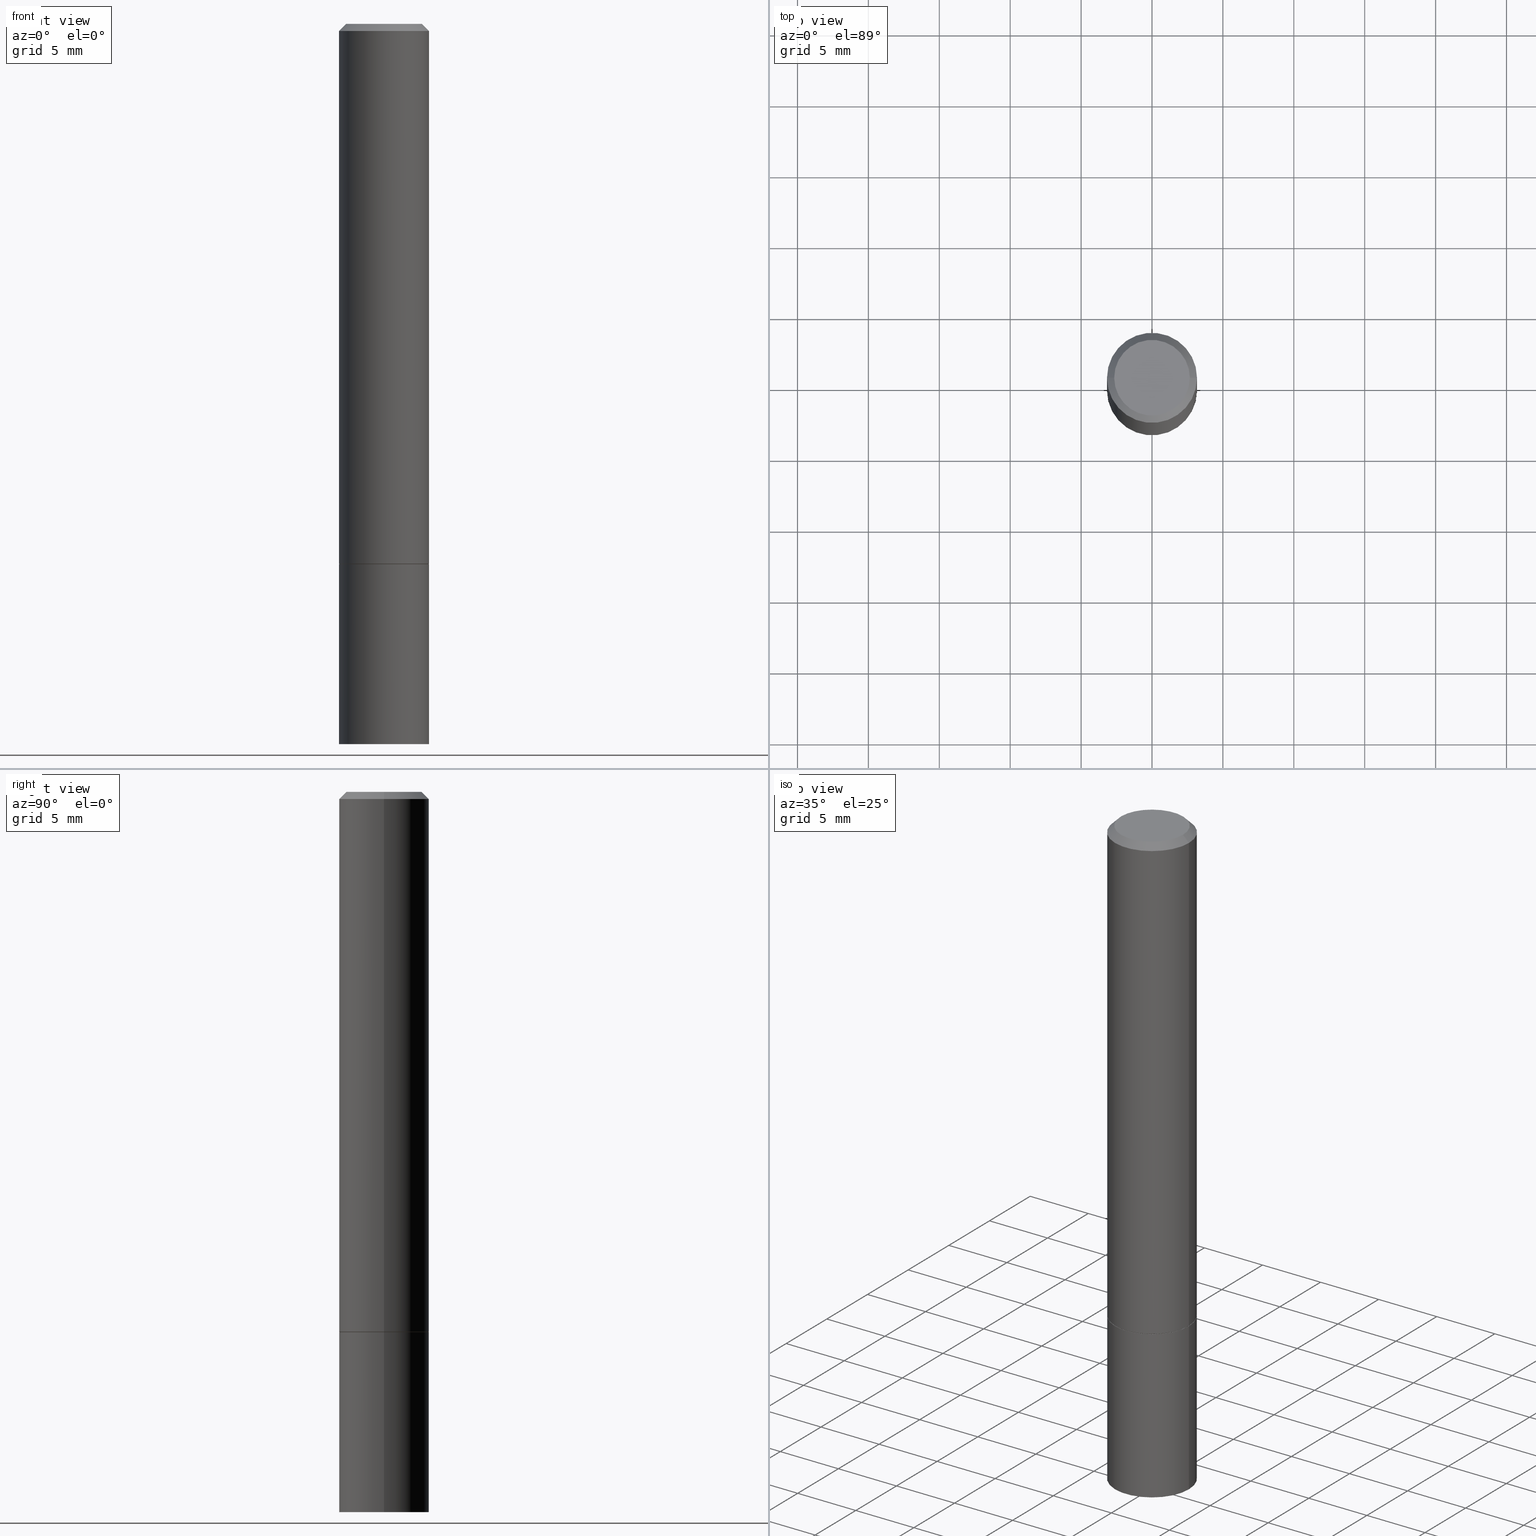
[diagram: canonical four-view strip — front | top / right | iso, engineering-drawing reading convention]
A machine part, canonical four-view strip (front | top / right | iso — engineering-drawing reading convention). The complete STEP part file that produces these views, byte-faithful:
ISO-10303-21;
HEADER;
FILE_DESCRIPTION (( 'STEP AP203' ),
    '1' );
FILE_NAME ('31656.STEP',
    '2024-02-27T13:11:52',
    ( '' ),
    ( '' ),
    'SwSTEP 2.0',
    'SolidWorks 2023',
    '' );
FILE_SCHEMA (( 'CONFIG_CONTROL_DESIGN' ));
ENDSEC;

DATA;
#1 = CC_DESIGN_PERSON_AND_ORGANIZATION_ASSIGNMENT ( #24, #255, ( #36 ) ) ;
#2 = DIRECTION ( 'NONE',  ( -2.445468806185136597E-29, 3.491481338843145583E-15, 1.000000000000000000 ) ) ;
#3 = PRODUCT_DEFINITION_FORMATION_WITH_SPECIFIED_SOURCE ( 'ANY', '', #36, .NOT_KNOWN. ) ;
#4 = EDGE_CURVE ( 'NONE', #354, #94, #82, .T. ) ;
#5 = EDGE_CURVE ( 'NONE', #95, #68, #44, .T. ) ;
#6 = AXIS2_PLACEMENT_3D ( 'NONE', #173, #292, #143 ) ;
#7 = APPROVAL_ROLE ( '' ) ;
#8 = LINE ( 'NONE', #90, #122 ) ;
#9 = CARTESIAN_POINT ( 'NONE',  ( 8.728703347108198236E-16, 0.1249999999999947542, -1.500000000000000444 ) ) ;
#10 = ORIENTED_EDGE ( 'NONE', *, *, #228, .F. ) ;
#11 = CC_DESIGN_PERSON_AND_ORGANIZATION_ASSIGNMENT ( #183, #303, ( #3 ) ) ;
#12 = VERTEX_POINT ( 'NONE', #343 ) ;
#13 =( LENGTH_UNIT ( ) NAMED_UNIT ( * ) SI_UNIT ( $, .METRE. ) );
#14 = AXIS2_PLACEMENT_3D ( 'NONE', #80, #195, #308 ) ;
#15 = AXIS2_PLACEMENT_3D ( 'NONE', #139, #163, #77 ) ;
#16 = ORIENTED_EDGE ( 'NONE', *, *, #89, .T. ) ;
#17 = EDGE_CURVE ( 'NONE', #94, #220, #141, .T. ) ;
#18 = PERSON_AND_ORGANIZATION ( #179, #294 ) ;
#19 = CARTESIAN_POINT ( 'NONE',  ( 3.665757740471518732E-29, -5.233730526925875170E-15, -1.498999999999999666 ) ) ;
#20 = EDGE_LOOP ( 'NONE', ( #327, #10 ) ) ;
#21 = ADVANCED_FACE ( 'NONE', ( #251 ), #349, .T. ) ;
#22 = AXIS2_PLACEMENT_3D ( 'NONE', #358, #226, #335 ) ;
#23 = CARTESIAN_POINT ( 'NONE',  ( 3.668203209277704335E-29, -5.237222008264717388E-15, -1.499999999999999778 ) ) ;
#24 = PERSON_AND_ORGANIZATION ( #179, #294 ) ;
#25 = CALENDAR_DATE ( 2024, 27, 2 ) ;
#26 = LINE ( 'NONE', #192, #350 ) ;
#27 = DIRECTION ( 'NONE',  ( 1.000000000000000000, -6.982962677686270655E-15, 0.000000000000000000 ) ) ;
#28 = ORIENTED_EDGE ( 'NONE', *, *, #17, .F. ) ;
#29 = CIRCLE ( 'NONE', #293, 0.1239999999999999991 ) ;
#30 = CARTESIAN_POINT ( 'NONE',  ( 0.000000000000000000, 0.000000000000000000, 0.000000000000000000 ) ) ;
#31 = CARTESIAN_POINT ( 'NONE',  ( 4.890937612370273194E-29, -6.982962677686291165E-15, -2.000000000000000000 ) ) ;
#32 = CARTESIAN_POINT ( 'NONE',  ( 7.332110811570569396E-16, 0.1049999999999998573, -3.666055405785298010E-16 ) ) ;
#33 = ADVANCED_BREP_SHAPE_REPRESENTATION ( '31656', ( #295, #47, #6 ), #332 ) ;
#34 = LINE ( 'NONE', #205, #61 ) ;
#35 = CC_DESIGN_PERSON_AND_ORGANIZATION_ASSIGNMENT ( #159, #278, ( #197 ) ) ;
#36 = PRODUCT ( '31656', '31656', '', ( #359 ) ) ;
#37 = APPROVAL_PERSON_ORGANIZATION ( #178, #282, #138 ) ;
#38 = ORIENTED_EDGE ( 'NONE', *, *, #194, .F. ) ;
#39 = APPLICATION_CONTEXT ( 'configuration controlled 3d designs of mechanical parts and assemblies' ) ;
#40 = DIRECTION ( 'NONE',  ( 2.438088387897960049E-29, -3.491481338843145188E-15, -1.000000000000000000 ) ) ;
#41 = ORIENTED_EDGE ( 'NONE', *, *, #123, .T. ) ;
#42 = FACE_OUTER_BOUND ( 'NONE', #304, .T. ) ;
#43 = EDGE_LOOP ( 'NONE', ( #326, #130, #300, #191 ) ) ;
#44 = CIRCLE ( 'NONE', #276, 0.1049999999999998573 ) ;
#45 = SECURITY_CLASSIFICATION_LEVEL ( 'unclassified' ) ;
#46 = CIRCLE ( 'NONE', #15, 0.1250000000000000000 ) ;
#47 = MANIFOLD_SOLID_BREP ( 'Body-Move/Copy2[2]', #214 ) ;
#48 = ORIENTED_EDGE ( 'NONE', *, *, #264, .T. ) ;
#49 = CYLINDRICAL_SURFACE ( 'NONE', #22, 0.1249999999999999167 ) ;
#50 = ADVANCED_FACE ( 'NONE', ( #306 ), #232, .T. ) ;
#51 = CARTESIAN_POINT ( 'NONE',  ( 3.668203209277704895E-29, -5.237222008264718177E-15, -1.500000000000000222 ) ) ;
#52 = CARTESIAN_POINT ( 'NONE',  ( -0.1250000000000000000, 8.881784197001252323E-16, -6.148668862818632227E-30 ) ) ;
#53 = CC_DESIGN_APPROVAL ( #66, ( #197 ) ) ;
#54 = CARTESIAN_POINT ( 'NONE',  ( 3.668203209277704335E-29, -5.237222008264717388E-15, -1.499999999999999778 ) ) ;
#55 = DIRECTION ( 'NONE',  ( 1.000000000000000000, -6.982962677686270655E-15, 0.000000000000000000 ) ) ;
#56 = LENGTH_MEASURE_WITH_UNIT ( LENGTH_MEASURE( 0.02539999999999999897 ), #13 );
#57 = CARTESIAN_POINT ( 'NONE',  ( 0.1250000000000000000, -6.106600861636658508E-15, -1.498999999999999666 ) ) ;
#58 = CC_DESIGN_SECURITY_CLASSIFICATION ( #197, ( #3 ) ) ;
#59 = DIRECTION ( 'NONE',  ( -2.445468806185136877E-29, 3.491481338843145188E-15, 1.000000000000000000 ) ) ;
#60 = APPROVAL_DATE_TIME ( #262, #66 ) ;
#61 = VECTOR ( 'NONE', #119, 39.37007874015748143 ) ;
#62 = LOCAL_TIME ( 8, 11, 52.00000000000000000, #285 ) ;
#63 = LINE ( 'NONE', #172, #240 ) ;
#64 = CARTESIAN_POINT ( 'NONE',  ( 0.1239999999999999991, -6.103109380297816290E-15, -1.500000000000000222 ) ) ;
#65 = PERSON_AND_ORGANIZATION_ROLE ( 'creator' ) ;
#66 = APPROVAL ( #250, 'UNSPECIFIED' ) ;
#67 = EDGE_LOOP ( 'NONE', ( #156, #272 ) ) ;
#68 = VERTEX_POINT ( 'NONE', #283 ) ;
#69 = EDGE_LOOP ( 'NONE', ( #279, #324, #201, #75 ) ) ;
#70 = CC_DESIGN_PERSON_AND_ORGANIZATION_ASSIGNMENT ( #76, #81, ( #174 ) ) ;
#71 = ORIENTED_EDGE ( 'NONE', *, *, #182, .T. ) ;
#72 = DIMENSIONAL_EXPONENTS ( 1.000000000000000000, 0.000000000000000000, 0.000000000000000000, 0.000000000000000000, 0.000000000000000000, 0.000000000000000000, 0.000000000000000000 ) ;
#73 = CARTESIAN_POINT ( 'NONE',  ( 0.000000000000000000, 0.000000000000000000, 0.000000000000000000 ) ) ;
#74 = ADVANCED_FACE ( 'NONE', ( #140 ), #49, .T. ) ;
#75 = ORIENTED_EDGE ( 'NONE', *, *, #264, .F. ) ;
#76 = PERSON_AND_ORGANIZATION ( #179, #294 ) ;
#77 = DIRECTION ( 'NONE',  ( 1.000000000000000000, -6.982962677686270655E-15, 0.000000000000000000 ) ) ;
#78 = DIRECTION ( 'NONE',  ( 1.000000000000000000, -6.982962677686266711E-15, 0.000000000000000000 ) ) ;
#79 = FACE_OUTER_BOUND ( 'NONE', #155, .T. ) ;
#80 = CARTESIAN_POINT ( 'NONE',  ( 3.668203209277704335E-29, -5.237222008264717388E-15, -1.499999999999999778 ) ) ;
#81 = PERSON_AND_ORGANIZATION_ROLE ( 'creator' ) ;
#82 = CIRCLE ( 'NONE', #316, 0.1250000000000000000 ) ;
#83 = LINE ( 'NONE', #198, #166 ) ;
#84 = CARTESIAN_POINT ( 'NONE',  ( 4.890937612370279289E-31, -6.982962677686299005E-17, -0.02000000000000002470 ) ) ;
#85 = ORIENTED_EDGE ( 'NONE', *, *, #113, .F. ) ;
#86 =( CONVERSION_BASED_UNIT ( 'INCH', #56 ) LENGTH_UNIT ( ) NAMED_UNIT ( #72 ) );
#87 = LINE ( 'NONE', #52, #202 ) ;
#88 = DIRECTION ( 'NONE',  ( 1.000000000000000000, -6.982962677686266711E-15, 4.876176775795935793E-29 ) ) ;
#89 = EDGE_CURVE ( 'NONE', #68, #95, #102, .T. ) ;
#90 = CARTESIAN_POINT ( 'NONE',  ( -0.1239999999999999991, -4.356149015922194741E-15, -1.500000000000000222 ) ) ;
#91 = DIRECTION ( 'NONE',  ( 1.000000000000000000, -6.982962677686270655E-15, 0.000000000000000000 ) ) ;
#92 = CIRCLE ( 'NONE', #270, 0.1249999999999998335 ) ;
#93 = CIRCLE ( 'NONE', #291, 0.1250000000000000000 ) ;
#94 = VERTEX_POINT ( 'NONE', #57 ) ;
#95 = VERTEX_POINT ( 'NONE', #170 ) ;
#96 = AXIS2_PLACEMENT_3D ( 'NONE', #100, #331, #88 ) ;
#97 = ORIENTED_EDGE ( 'NONE', *, *, #225, .T. ) ;
#98 = ORIENTED_EDGE ( 'NONE', *, *, #329, .F. ) ;
#99 = CALENDAR_DATE ( 2024, 27, 2 ) ;
#100 = CARTESIAN_POINT ( 'NONE',  ( 0.000000000000000000, 0.000000000000000000, 0.000000000000000000 ) ) ;
#101 = EDGE_LOOP ( 'NONE', ( #131, #241, #48, #247 ) ) ;
#102 = CIRCLE ( 'NONE', #188, 0.1049999999999998573 ) ;
#103 = DIRECTION ( 'NONE',  ( 1.000000000000000000, -6.982962677686270655E-15, 0.000000000000000000 ) ) ;
#104 = CALENDAR_DATE ( 2024, 27, 2 ) ;
#105 = DIRECTION ( 'NONE',  ( -2.445468806185136597E-29, 3.491481338843145583E-15, 1.000000000000000000 ) ) ;
#106 = CARTESIAN_POINT ( 'NONE',  ( 3.668203209277704895E-29, -5.237222008264718177E-15, -1.500000000000000222 ) ) ;
#107 = DIRECTION ( 'NONE',  ( 2.438088387897960049E-29, -3.491481338843145188E-15, -1.000000000000000000 ) ) ;
#108 = DIRECTION ( 'NONE',  ( 1.000000000000000000, -6.982962677686270655E-15, 0.000000000000000000 ) ) ;
#109 = VECTOR ( 'NONE', #258, 39.37007874015748143 ) ;
#110 = DIRECTION ( 'NONE',  ( -2.445468806185136597E-29, 3.491481338843145583E-15, 1.000000000000000000 ) ) ;
#111 =( NAMED_UNIT ( * ) SI_UNIT ( $, .STERADIAN. ) SOLID_ANGLE_UNIT ( ) );
#112 = DIRECTION ( 'NONE',  ( -2.445468806185136597E-29, 3.491481338843145583E-15, 1.000000000000000000 ) ) ;
#113 = EDGE_CURVE ( 'NONE', #220, #12, #346, .T. ) ;
#114 = DIRECTION ( 'NONE',  ( 1.000000000000000000, -6.982962677686270655E-15, 0.000000000000000000 ) ) ;
#115 = APPROVAL_PERSON_ORGANIZATION ( #305, #210, #7 ) ;
#116 = PRODUCT_DEFINITION_SHAPE ( 'NONE', 'NONE',  #174 ) ;
#117 = CC_DESIGN_PERSON_AND_ORGANIZATION_ASSIGNMENT ( #323, #65, ( #3 ) ) ;
#118 = CARTESIAN_POINT ( 'NONE',  ( 8.728703347108321496E-16, 0.1249999999999930195, -2.000000000000000444 ) ) ;
#119 = DIRECTION ( 'NONE',  ( 0.7071067811865466846, -7.319954787623252890E-15, -0.7071067811865483499 ) ) ;
#120 = DIRECTION ( 'NONE',  ( -1.000000000000000000, 6.982962677686265922E-15, -4.876176775795935793E-29 ) ) ;
#121 = ADVANCED_FACE ( 'NONE', ( #364 ), #339, .F. ) ;
#122 = VECTOR ( 'NONE', #206, 39.37007874015748143 ) ;
#123 = EDGE_CURVE ( 'NONE', #248, #127, #87, .T. ) ;
#124 = COORDINATED_UNIVERSAL_TIME_OFFSET ( 5, 0, .BEHIND. ) ;
#125 = EDGE_CURVE ( 'NONE', #353, #127, #348, .T. ) ;
#126 = PLANE ( 'NONE',  #181 ) ;
#127 = VERTEX_POINT ( 'NONE', #231 ) ;
#128 = ORIENTED_EDGE ( 'NONE', *, *, #228, .T. ) ;
#129 = LOCAL_TIME ( 8, 11, 52.00000000000000000, #338 ) ;
#130 = ORIENTED_EDGE ( 'NONE', *, *, #329, .T. ) ;
#131 = ORIENTED_EDGE ( 'NONE', *, *, #180, .F. ) ;
#132 = APPROVAL_DATE_TIME ( #271, #282 ) ;
#133 = CYLINDRICAL_SURFACE ( 'NONE', #266, 0.1250000000000000000 ) ;
#134 = EDGE_LOOP ( 'NONE', ( #160, #212 ) ) ;
#135 = DIRECTION ( 'NONE',  ( -2.445468806185136597E-29, 3.491481338843145583E-15, 1.000000000000000000 ) ) ;
#136 = AXIS2_PLACEMENT_3D ( 'NONE', #118, #151, #120 ) ;
#137 = DIRECTION ( 'NONE',  ( -2.445468806185136597E-29, 3.491481338843145583E-15, 1.000000000000000000 ) ) ;
#138 = APPROVAL_ROLE ( '' ) ;
#139 = CARTESIAN_POINT ( 'NONE',  ( 4.890937612370273194E-29, -6.982962677686291165E-15, -2.000000000000000000 ) ) ;
#140 = FACE_OUTER_BOUND ( 'NONE', #274, .T. ) ;
#141 = LINE ( 'NONE', #142, #109 ) ;
#142 = CARTESIAN_POINT ( 'NONE',  ( 0.1249999999999999167, -8.728703347107827472E-16, 6.095220969744915537E-30 ) ) ;
#143 = DIRECTION ( 'NONE',  ( 1.000000000000000000, 0.000000000000000000, 0.000000000000000000 ) ) ;
#144 = DESIGN_CONTEXT ( 'detailed design', #39, 'design' ) ;
#145 = DIRECTION ( 'NONE',  ( 2.445468806185136597E-29, -3.491481338843145583E-15, -1.000000000000000000 ) ) ;
#146 = ADVANCED_FACE ( 'NONE', ( #313 ), #196, .T. ) ;
#147 = CARTESIAN_POINT ( 'NONE',  ( 4.890937612370279289E-31, -6.982962677686299005E-17, -0.02000000000000002470 ) ) ;
#148 = DATE_TIME_ROLE ( 'creation_date' ) ;
#149 = AXIS2_PLACEMENT_3D ( 'NONE', #54, #261, #344 ) ;
#150 = AXIS2_PLACEMENT_3D ( 'NONE', #185, #135, #213 ) ;
#151 = DIRECTION ( 'NONE',  ( 2.438088387897960049E-29, -3.491481338843145188E-15, -1.000000000000000000 ) ) ;
#152 = EDGE_CURVE ( 'NONE', #223, #333, #29, .T. ) ;
#153 = ORIENTED_EDGE ( 'NONE', *, *, #310, .T. ) ;
#154 = CARTESIAN_POINT ( 'NONE',  ( -0.1250000000000000000, -1.763601657151241635E-15, -1.498999999999999666 ) ) ;
#155 = EDGE_LOOP ( 'NONE', ( #71, #41, #162, #356 ) ) ;
#156 = ORIENTED_EDGE ( 'NONE', *, *, #269, .F. ) ;
#157 = AXIS2_PLACEMENT_3D ( 'NONE', #31, #317, #91 ) ;
#158 = CC_DESIGN_APPROVAL ( #282, ( #174 ) ) ;
#159 = PERSON_AND_ORGANIZATION ( #179, #294 ) ;
#160 = ORIENTED_EDGE ( 'NONE', *, *, #125, .T. ) ;
#161 = EDGE_CURVE ( 'NONE', #127, #353, #340, .T. ) ;
#162 = ORIENTED_EDGE ( 'NONE', *, *, #125, .F. ) ;
#163 = DIRECTION ( 'NONE',  ( -2.445468806185136597E-29, 3.491481338843145583E-15, 1.000000000000000000 ) ) ;
#164 = DIRECTION ( 'NONE',  ( -2.445468806185136877E-29, 3.491481338843145188E-15, 1.000000000000000000 ) ) ;
#165 = AXIS2_PLACEMENT_3D ( 'NONE', #365, #193, #103 ) ;
#166 = VECTOR ( 'NONE', #312, 39.37007874015748143 ) ;
#167 = CARTESIAN_POINT ( 'NONE',  ( 3.668203209277704895E-29, -5.237222008264718177E-15, -1.500000000000000222 ) ) ;
#168 = FACE_OUTER_BOUND ( 'NONE', #20, .T. ) ;
#169 = DIRECTION ( 'NONE',  ( 1.000000000000000000, -6.982962677686265922E-15, 4.876176775795935232E-29 ) ) ;
#170 = CARTESIAN_POINT ( 'NONE',  ( -0.1049999999999998573, 7.681258945454880957E-16, -5.249639473182158869E-30 ) ) ;
#171 = CIRCLE ( 'NONE', #245, 0.1239999999999999991 ) ;
#172 = CARTESIAN_POINT ( 'NONE',  ( -0.1249999999999999167, 8.881784197001246407E-16, -6.148668862818628023E-30 ) ) ;
#173 = CARTESIAN_POINT ( 'NONE',  ( 0.000000000000000000, 0.000000000000000000, 0.000000000000000000 ) ) ;
#174 = PRODUCT_DEFINITION ( 'UNKNOWN', '', #3, #144 ) ;
#175 = DIRECTION ( 'NONE',  ( 1.000000000000000000, -6.982962677686270655E-15, 0.000000000000000000 ) ) ;
#176 = SHAPE_DEFINITION_REPRESENTATION ( #116, #33 ) ;
#177 = CARTESIAN_POINT ( 'NONE',  ( 4.890937612370279289E-31, -6.982962677686299005E-17, -0.02000000000000002470 ) ) ;
#178 = PERSON_AND_ORGANIZATION ( #179, #294 ) ;
#179 = PERSON ( 'UNSPECIFIED', 'UNSPECIFIED', 'UNSPECIFIED', ('UNSPECIFIED'), ('UNSPECIFIED'), ('UNSPECIFIED') ) ;
#180 = EDGE_CURVE ( 'NONE', #68, #220, #34, .T. ) ;
#181 = AXIS2_PLACEMENT_3D ( 'NONE', #9, #40, #218 ) ;
#182 = EDGE_CURVE ( 'NONE', #281, #248, #320, .T. ) ;
#183 = PERSON_AND_ORGANIZATION ( #179, #294 ) ;
#184 = ORIENTED_EDGE ( 'NONE', *, *, #161, .F. ) ;
#185 = CARTESIAN_POINT ( 'NONE',  ( 0.000000000000000000, 0.000000000000000000, 0.000000000000000000 ) ) ;
#186 = CARTESIAN_POINT ( 'NONE',  ( 0.1249999999999998335, -9.273918764983031658E-16, -0.02000000000000002470 ) ) ;
#187 = ORIENTED_EDGE ( 'NONE', *, *, #5, .T. ) ;
#188 = AXIS2_PLACEMENT_3D ( 'NONE', #200, #236, #169 ) ;
#189 = LOCAL_TIME ( 8, 11, 52.00000000000000000, #355 ) ;
#190 = LINE ( 'NONE', #318, #208 ) ;
#191 = ORIENTED_EDGE ( 'NONE', *, *, #310, .F. ) ;
#192 = CARTESIAN_POINT ( 'NONE',  ( 0.1250000000000000000, -8.728703347107833388E-16, 6.095220969744919741E-30 ) ) ;
#193 = DIRECTION ( 'NONE',  ( -2.445468806185136597E-29, 3.491481338843145583E-15, 1.000000000000000000 ) ) ;
#194 = EDGE_CURVE ( 'NONE', #354, #12, #63, .T. ) ;
#195 = DIRECTION ( 'NONE',  ( -2.445468806185136597E-29, 3.491481338843145583E-15, 1.000000000000000000 ) ) ;
#196 = CONICAL_SURFACE ( 'NONE', #238, 0.1249999999999998335, 0.7853981633974471688 ) ;
#197 = SECURITY_CLASSIFICATION ( '', '', #45 ) ;
#198 = CARTESIAN_POINT ( 'NONE',  ( 0.1239999999999999991, -6.103109380297816290E-15, -1.500000000000000222 ) ) ;
#199 = ORIENTED_EDGE ( 'NONE', *, *, #123, .F. ) ;
#200 = CARTESIAN_POINT ( 'NONE',  ( 0.000000000000000000, 0.000000000000000000, 0.000000000000000000 ) ) ;
#201 = ORIENTED_EDGE ( 'NONE', *, *, #113, .T. ) ;
#202 = VECTOR ( 'NONE', #164, 39.37007874015748143 ) ;
#203 = DIRECTION ( 'NONE',  ( -0.7071067811865466846, 2.468850131082247989E-15, -0.7071067811865483499 ) ) ;
#204 = CALENDAR_DATE ( 2024, 27, 2 ) ;
#205 = CARTESIAN_POINT ( 'NONE',  ( 0.1249999999999998335, -9.273918764983031658E-16, -0.02000000000000002470 ) ) ;
#206 = DIRECTION ( 'NONE',  ( -0.7071067811864267805, 7.493145998869918709E-15, 0.7071067811866682540 ) ) ;
#207 = EDGE_CURVE ( 'NONE', #12, #220, #92, .T. ) ;
#208 = VECTOR ( 'NONE', #203, 39.37007874015748143 ) ;
#209 = ADVANCED_FACE ( 'NONE', ( #268 ), #233, .T. ) ;
#210 = APPROVAL ( #360, 'UNSPECIFIED' ) ;
#211 = APPROVAL_DATE_TIME ( #280, #210 ) ;
#212 = ORIENTED_EDGE ( 'NONE', *, *, #161, .T. ) ;
#213 = DIRECTION ( 'NONE',  ( 1.000000000000000000, -6.982962677686266711E-15, 4.876176775795935793E-29 ) ) ;
#214 = CLOSED_SHELL ( 'NONE', ( #50, #345, #146, #209, #74, #21, #121, #296 ) ) ;
#215 = CC_DESIGN_DATE_AND_TIME_ASSIGNMENT ( #221, #328, ( #197 ) ) ;
#216 = ORIENTED_EDGE ( 'NONE', *, *, #17, .T. ) ;
#217 = CC_DESIGN_APPROVAL ( #210, ( #3 ) ) ;
#218 = DIRECTION ( 'NONE',  ( -1.000000000000000000, 6.982962677686265922E-15, -4.876176775795935793E-29 ) ) ;
#219 = ADVANCED_FACE ( 'NONE', ( #273 ), #126, .F. ) ;
#220 = VERTEX_POINT ( 'NONE', #186 ) ;
#221 = DATE_AND_TIME ( #99, #189 ) ;
#222 = DIRECTION ( 'NONE',  ( -2.445468806185136597E-29, 3.491481338843145583E-15, 1.000000000000000000 ) ) ;
#223 = VERTEX_POINT ( 'NONE', #301 ) ;
#224 = LOCAL_TIME ( 8, 11, 52.00000000000000000, #124 ) ;
#225 = EDGE_CURVE ( 'NONE', #94, #354, #93, .T. ) ;
#226 = DIRECTION ( 'NONE',  ( -2.445468806185136597E-29, 3.491481338843145583E-15, 1.000000000000000000 ) ) ;
#227 = DIRECTION ( 'NONE',  ( -2.445468806185136597E-29, 3.491481338843145583E-15, 1.000000000000000000 ) ) ;
#228 = EDGE_CURVE ( 'NONE', #248, #281, #46, .T. ) ;
#229 = APPROVAL_STATUS ( 'not_yet_approved' ) ;
#230 = PLANE ( 'NONE',  #253 ) ;
#231 = CARTESIAN_POINT ( 'NONE',  ( -0.1250000000000000000, -5.221913923275378650E-15, -1.499999999999999778 ) ) ;
#232 = CONICAL_SURFACE ( 'NONE', #252, 0.1239999999999999991, 0.7853981633972775267 ) ;
#233 = CONICAL_SURFACE ( 'NONE', #342, 0.1249999999999998335, 0.7853981633974471688 ) ;
#234 = EDGE_LOOP ( 'NONE', ( #187, #16 ) ) ;
#235 = ADVANCED_FACE ( 'NONE', ( #79 ), #265, .T. ) ;
#236 = DIRECTION ( 'NONE',  ( -2.445468806185136597E-29, 3.491481338843145583E-15, 1.000000000000000000 ) ) ;
#237 = CARTESIAN_POINT ( 'NONE',  ( -0.1250000000000000000, -5.221913923275378650E-15, -2.000000000000000000 ) ) ;
#238 = AXIS2_PLACEMENT_3D ( 'NONE', #84, #254, #362 ) ;
#239 = COORDINATED_UNIVERSAL_TIME_OFFSET ( 5, 0, .BEHIND. ) ;
#240 = VECTOR ( 'NONE', #59, 39.37007874015748143 ) ;
#241 = ORIENTED_EDGE ( 'NONE', *, *, #5, .F. ) ;
#242 = PRODUCT_RELATED_PRODUCT_CATEGORY ( 'detail', '', ( #36 ) ) ;
#243 = ORIENTED_EDGE ( 'NONE', *, *, #194, .T. ) ;
#244 = ADVANCED_FACE ( 'NONE', ( #361 ), #133, .T. ) ;
#245 = AXIS2_PLACEMENT_3D ( 'NONE', #51, #105, #114 ) ;
#246 = UNCERTAINTY_MEASURE_WITH_UNIT (LENGTH_MEASURE( 1.000000000000000082E-05 ), #86, 'distance_accuracy_value', 'NONE');
#247 = ORIENTED_EDGE ( 'NONE', *, *, #207, .T. ) ;
#248 = VERTEX_POINT ( 'NONE', #237 ) ;
#249 = EDGE_CURVE ( 'NONE', #281, #353, #26, .T. ) ;
#250 = APPROVAL_STATUS ( 'not_yet_approved' ) ;
#251 = FACE_OUTER_BOUND ( 'NONE', #298, .T. ) ;
#252 = AXIS2_PLACEMENT_3D ( 'NONE', #167, #314, #27 ) ;
#253 = AXIS2_PLACEMENT_3D ( 'NONE', #32, #107, #263 ) ;
#254 = DIRECTION ( 'NONE',  ( 2.445468806185136597E-29, -3.491481338843145583E-15, -1.000000000000000000 ) ) ;
#255 = PERSON_AND_ORGANIZATION_ROLE ( 'design_owner' ) ;
#256 = FACE_OUTER_BOUND ( 'NONE', #234, .T. ) ;
#257 = DIRECTION ( 'NONE',  ( -2.445468806185136597E-29, 3.491481338843145583E-15, 1.000000000000000000 ) ) ;
#258 = DIRECTION ( 'NONE',  ( -2.445468806185136877E-29, 3.491481338843145188E-15, 1.000000000000000000 ) ) ;
#259 = AXIS2_PLACEMENT_3D ( 'NONE', #23, #137, #108 ) ;
#260 = APPROVAL_PERSON_ORGANIZATION ( #18, #66, #357 ) ;
#261 = DIRECTION ( 'NONE',  ( -2.438088387897960049E-29, 3.491481338843145188E-15, 1.000000000000000000 ) ) ;
#262 = DATE_AND_TIME ( #204, #284 ) ;
#263 = DIRECTION ( 'NONE',  ( -1.000000000000000000, 6.982962677686265922E-15, -4.876176775795935793E-29 ) ) ;
#264 = EDGE_CURVE ( 'NONE', #95, #12, #190, .T. ) ;
#265 = CYLINDRICAL_SURFACE ( 'NONE', #96, 0.1250000000000000000 ) ;
#266 = AXIS2_PLACEMENT_3D ( 'NONE', #73, #286, #336 ) ;
#267 = DIRECTION ( 'NONE',  ( -1.000000000000000000, 6.982962677686266711E-15, 0.000000000000000000 ) ) ;
#268 = FACE_OUTER_BOUND ( 'NONE', #101, .T. ) ;
#269 = EDGE_CURVE ( 'NONE', #333, #223, #171, .T. ) ;
#270 = AXIS2_PLACEMENT_3D ( 'NONE', #147, #2, #319 ) ;
#271 = DATE_AND_TIME ( #25, #129 ) ;
#272 = ORIENTED_EDGE ( 'NONE', *, *, #152, .F. ) ;
#273 = FACE_OUTER_BOUND ( 'NONE', #134, .T. ) ;
#274 = EDGE_LOOP ( 'NONE', ( #38, #351, #216, #366 ) ) ;
#275 = ORIENTED_EDGE ( 'NONE', *, *, #249, .T. ) ;
#276 = AXIS2_PLACEMENT_3D ( 'NONE', #30, #112, #290 ) ;
#277 = ORIENTED_EDGE ( 'NONE', *, *, #4, .F. ) ;
#278 = PERSON_AND_ORGANIZATION_ROLE ( 'classification_officer' ) ;
#279 = ORIENTED_EDGE ( 'NONE', *, *, #89, .F. ) ;
#280 = DATE_AND_TIME ( #104, #224 ) ;
#281 = VERTEX_POINT ( 'NONE', #347 ) ;
#282 = APPROVAL ( #229, 'UNSPECIFIED' ) ;
#283 = CARTESIAN_POINT ( 'NONE',  ( 0.1049999999999998573, -8.238720831321564811E-16, 5.444276250344142358E-30 ) ) ;
#284 = LOCAL_TIME ( 8, 11, 52.00000000000000000, #239 ) ;
#285 = COORDINATED_UNIVERSAL_TIME_OFFSET ( 5, 0, .BEHIND. ) ;
#286 = DIRECTION ( 'NONE',  ( -2.445468806185136597E-29, 3.491481338843145583E-15, 1.000000000000000000 ) ) ;
#287 = CARTESIAN_POINT ( 'NONE',  ( 3.665757740471518732E-29, -5.233730526925875170E-15, -1.498999999999999666 ) ) ;
#288 = PLANE ( 'NONE',  #136 ) ;
#289 = CARTESIAN_POINT ( 'NONE',  ( 4.890937612370279289E-31, -6.982962677686299005E-17, -0.02000000000000002470 ) ) ;
#290 = DIRECTION ( 'NONE',  ( 1.000000000000000000, -6.982962677686265922E-15, 4.876176775795935232E-29 ) ) ;
#291 = AXIS2_PLACEMENT_3D ( 'NONE', #19, #222, #175 ) ;
#292 = DIRECTION ( 'NONE',  ( 0.000000000000000000, 0.000000000000000000, 1.000000000000000000 ) ) ;
#293 = AXIS2_PLACEMENT_3D ( 'NONE', #106, #227, #337 ) ;
#294 = ORGANIZATION ( 'UNSPECIFIED', 'UNSPECIFIED', '' ) ;
#295 = MANIFOLD_SOLID_BREP ( 'Body-Move/Copy2[1]', #297 ) ;
#296 = ADVANCED_FACE ( 'NONE', ( #256 ), #230, .F. ) ;
#297 = CLOSED_SHELL ( 'NONE', ( #235, #321, #219, #244 ) ) ;
#298 = EDGE_LOOP ( 'NONE', ( #98, #302, #153, #277 ) ) ;
#299 = CARTESIAN_POINT ( 'NONE',  ( 0.1250000000000000000, -6.110092342975501516E-15, -1.499999999999999778 ) ) ;
#300 = ORIENTED_EDGE ( 'NONE', *, *, #225, .F. ) ;
#301 = CARTESIAN_POINT ( 'NONE',  ( -0.1239999999999999991, -4.350850561573971550E-15, -1.500000000000000222 ) ) ;
#302 = ORIENTED_EDGE ( 'NONE', *, *, #152, .T. ) ;
#303 = PERSON_AND_ORGANIZATION_ROLE ( 'design_supplier' ) ;
#304 = EDGE_LOOP ( 'NONE', ( #97, #243, #85, #28 ) ) ;
#305 = PERSON_AND_ORGANIZATION ( #179, #294 ) ;
#306 = FACE_OUTER_BOUND ( 'NONE', #43, .T. ) ;
#307 = DIRECTION ( 'NONE',  ( -2.445468806185136877E-29, 3.491481338843145188E-15, 1.000000000000000000 ) ) ;
#308 = DIRECTION ( 'NONE',  ( 1.000000000000000000, -6.982962677686270655E-15, 0.000000000000000000 ) ) ;
#309 = APPLICATION_PROTOCOL_DEFINITION ( 'international standard', 'config_control_design', 1994, #39 ) ;
#310 = EDGE_CURVE ( 'NONE', #333, #94, #83, .T. ) ;
#311 = CALENDAR_DATE ( 2024, 27, 2 ) ;
#312 = DIRECTION ( 'NONE',  ( 0.7071067811864267805, -2.468850131080992517E-15, 0.7071067811866682540 ) ) ;
#313 = FACE_OUTER_BOUND ( 'NONE', #69, .T. ) ;
#314 = DIRECTION ( 'NONE',  ( -2.445468806185136597E-29, 3.491481338843145583E-15, 1.000000000000000000 ) ) ;
#315 = APPLICATION_PROTOCOL_DEFINITION ( 'international standard', 'config_control_design', 1994, #325 ) ;
#316 = AXIS2_PLACEMENT_3D ( 'NONE', #287, #110, #55 ) ;
#317 = DIRECTION ( 'NONE',  ( -2.445468806185136597E-29, 3.491481338843145583E-15, 1.000000000000000000 ) ) ;
#318 = CARTESIAN_POINT ( 'NONE',  ( -0.1249999999999998335, 8.030407079339191532E-16, -0.02000000000000002470 ) ) ;
#319 = DIRECTION ( 'NONE',  ( 1.000000000000000000, -6.982962677686266711E-15, 0.000000000000000000 ) ) ;
#320 = CIRCLE ( 'NONE', #157, 0.1250000000000000000 ) ;
#321 = ADVANCED_FACE ( 'NONE', ( #168 ), #288, .T. ) ;
#322 = CC_DESIGN_DATE_AND_TIME_ASSIGNMENT ( #363, #148, ( #174 ) ) ;
#323 = PERSON_AND_ORGANIZATION ( #179, #294 ) ;
#324 = ORIENTED_EDGE ( 'NONE', *, *, #180, .T. ) ;
#325 = APPLICATION_CONTEXT ( 'configuration controlled 3d designs of mechanical parts and assemblies' ) ;
#326 = ORIENTED_EDGE ( 'NONE', *, *, #269, .T. ) ;
#327 = ORIENTED_EDGE ( 'NONE', *, *, #182, .F. ) ;
#328 = DATE_TIME_ROLE ( 'classification_date' ) ;
#329 = EDGE_CURVE ( 'NONE', #223, #354, #8, .T. ) ;
#330 = AXIS2_PLACEMENT_3D ( 'NONE', #289, #257, #78 ) ;
#331 = DIRECTION ( 'NONE',  ( -2.445468806185136597E-29, 3.491481338843145583E-15, 1.000000000000000000 ) ) ;
#332 =( GEOMETRIC_REPRESENTATION_CONTEXT ( 3 ) GLOBAL_UNCERTAINTY_ASSIGNED_CONTEXT ( ( #246 ) ) GLOBAL_UNIT_ASSIGNED_CONTEXT ( ( #86, #341, #111 ) ) REPRESENTATION_CONTEXT ( 'NONE', 'WORKASPACE' ) );
#333 = VERTEX_POINT ( 'NONE', #64 ) ;
#334 = CYLINDRICAL_SURFACE ( 'NONE', #150, 0.1249999999999999167 ) ;
#335 = DIRECTION ( 'NONE',  ( 1.000000000000000000, -6.982962677686266711E-15, 4.876176775795935793E-29 ) ) ;
#336 = DIRECTION ( 'NONE',  ( 1.000000000000000000, -6.982962677686266711E-15, 4.876176775795935793E-29 ) ) ;
#337 = DIRECTION ( 'NONE',  ( 1.000000000000000000, -6.982962677686270655E-15, 0.000000000000000000 ) ) ;
#338 = COORDINATED_UNIVERSAL_TIME_OFFSET ( 5, 0, .BEHIND. ) ;
#339 = PLANE ( 'NONE',  #149 ) ;
#340 = CIRCLE ( 'NONE', #14, 0.1250000000000000000 ) ;
#341 =( NAMED_UNIT ( * ) PLANE_ANGLE_UNIT ( ) SI_UNIT ( $, .RADIAN. ) );
#342 = AXIS2_PLACEMENT_3D ( 'NONE', #177, #145, #267 ) ;
#343 = CARTESIAN_POINT ( 'NONE',  ( -0.1249999999999998335, 8.030407079339191532E-16, -0.02000000000000002470 ) ) ;
#344 = DIRECTION ( 'NONE',  ( 1.000000000000000000, -6.982962677686265922E-15, 4.876176775795935793E-29 ) ) ;
#345 = ADVANCED_FACE ( 'NONE', ( #42 ), #334, .T. ) ;
#346 = CIRCLE ( 'NONE', #330, 0.1249999999999998335 ) ;
#347 = CARTESIAN_POINT ( 'NONE',  ( 0.1250000000000000000, -7.855833012397075293E-15, -2.000000000000000000 ) ) ;
#348 = CIRCLE ( 'NONE', #259, 0.1250000000000000000 ) ;
#349 = CONICAL_SURFACE ( 'NONE', #165, 0.1239999999999999991, 0.7853981633972775267 ) ;
#350 = VECTOR ( 'NONE', #307, 39.37007874015748143 ) ;
#351 = ORIENTED_EDGE ( 'NONE', *, *, #4, .T. ) ;
#352 = EDGE_LOOP ( 'NONE', ( #199, #128, #275, #184 ) ) ;
#353 = VERTEX_POINT ( 'NONE', #299 ) ;
#354 = VERTEX_POINT ( 'NONE', #154 ) ;
#355 = COORDINATED_UNIVERSAL_TIME_OFFSET ( 5, 0, .BEHIND. ) ;
#356 = ORIENTED_EDGE ( 'NONE', *, *, #249, .F. ) ;
#357 = APPROVAL_ROLE ( '' ) ;
#358 = CARTESIAN_POINT ( 'NONE',  ( 0.000000000000000000, 0.000000000000000000, 0.000000000000000000 ) ) ;
#359 = MECHANICAL_CONTEXT ( 'NONE', #325, 'mechanical' ) ;
#360 = APPROVAL_STATUS ( 'not_yet_approved' ) ;
#361 = FACE_OUTER_BOUND ( 'NONE', #352, .T. ) ;
#362 = DIRECTION ( 'NONE',  ( -1.000000000000000000, 6.982962677686266711E-15, 0.000000000000000000 ) ) ;
#363 = DATE_AND_TIME ( #311, #62 ) ;
#364 = FACE_OUTER_BOUND ( 'NONE', #67, .T. ) ;
#365 = CARTESIAN_POINT ( 'NONE',  ( 3.668203209277704895E-29, -5.237222008264718177E-15, -1.500000000000000222 ) ) ;
#366 = ORIENTED_EDGE ( 'NONE', *, *, #207, .F. ) ;
ENDSEC;
END-ISO-10303-21;
